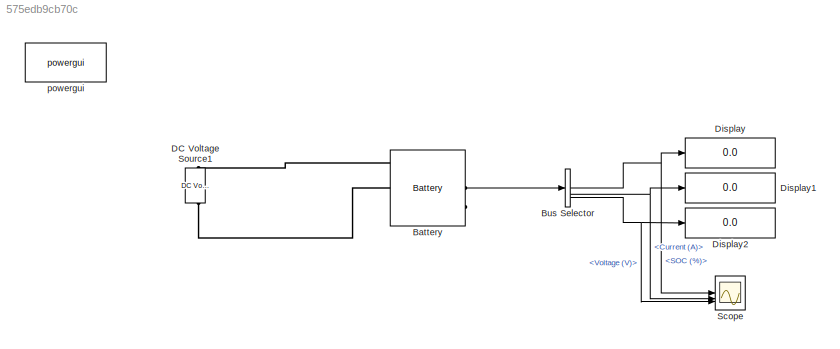
MODEL slx_575edb9cb70c
KIND model
CONFIG AbsTol = auto
CONFIG EnableMultiTasking = off
CONFIG FixedStep = auto
CONFIG MaxStep = auto
CONFIG MinStep = auto
CONFIG RelTol = 1e-3
CONFIG SampleTimeConstraint = Unconstrained
CONFIG SolverName = VariableStepAuto
CONFIG StartTime = 0.0
CONFIG StopTime = 10.0
BLOCK [Reference] Battery  REF=spsBatteryLib/Battery
  LibrarySourceBlock = sps_lib/Sources/Battery
  NameLocation = top
  SourceBlock = spsBatteryLib/Battery
  SourceType = Battery
BLOCK [BusSelector] Bus Selector
  OutputSignals = SOC (%),Current (A),Voltage (V)
BLOCK [Reference] DC Voltage Source1  REF=spsDCVoltageSourceLib/DC Voltage Source
  LibrarySourceBlock = sps_lib/Sources/DC Voltage Source
  NameLocation = top
  SourceBlock = spsDCVoltageSourceLib/DC Voltage Source
  SourceType = DC Voltage Source
BLOCK [Display] Display
  Decimation = 1
BLOCK [Display] Display1
  Decimation = 1
BLOCK [Display] Display2
  Decimation = 1
BLOCK [Scope] Scope
  Floating = off
  NumInputPorts = 3
  ScopeSpecificationString = Simulink.scopes.TimeScopeBlockCfg('CurrentConfiguration', extmgr.ConfigurationSet(extmgr.Configuration('Core','General UI',true),extmgr.Configuration('Core','Source UI',true),extmgr.Configuration('Sources','WiredSimulink',true),extmgr.Configuration('Visuals','Time Domain',true,'SerializedDisplays',{struct('MinYLimReal','43.75','MaxYLimReal','106.25','YLabelReal','','MinYLimMag','43.75','MaxYLimMag...<+2744ch>
BLOCK [Reference] powergui  REF=sps_lib/powergui
  Priority = 1
  SourceBlock = sps_lib/powergui
  SourceType = PSB option menu block
LINE Battery:1 -> Bus Selector:1
NET Bus Selector:1 -> Display:1, Scope:1
NET Bus Selector:2 -> Display1:1, Scope:2
NET Bus Selector:3 -> Display2:1, Scope:3
PLINE Battery:LConn1 -- DC Voltage Source1:RConn1
PLINE Battery:LConn2 -- DC Voltage Source1:LConn1
note: NET lines group one-source signal fan-out (src -> all destinations, sorted); 1:1 wires keep LINE
